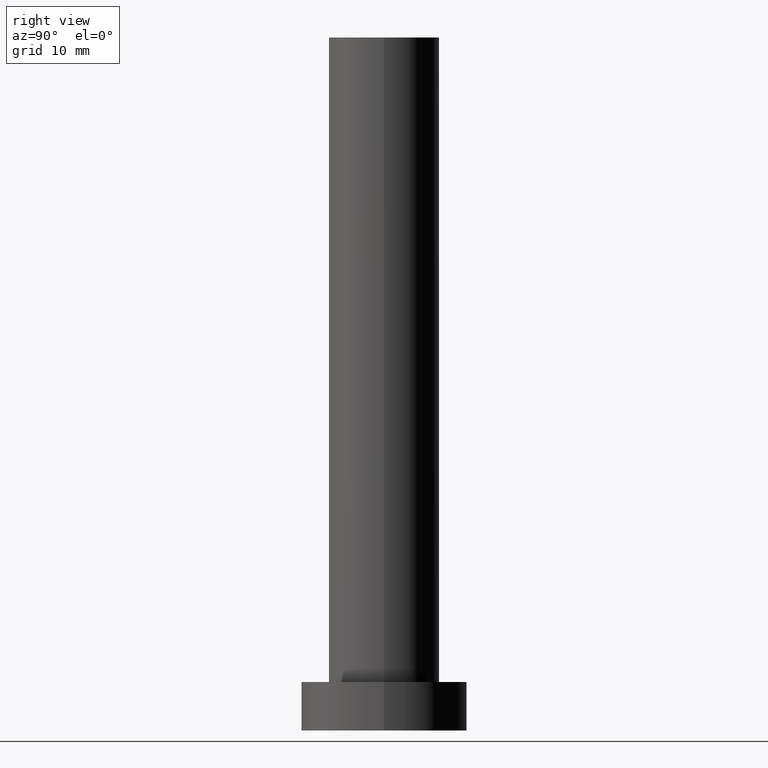
[diagram: clean part render]
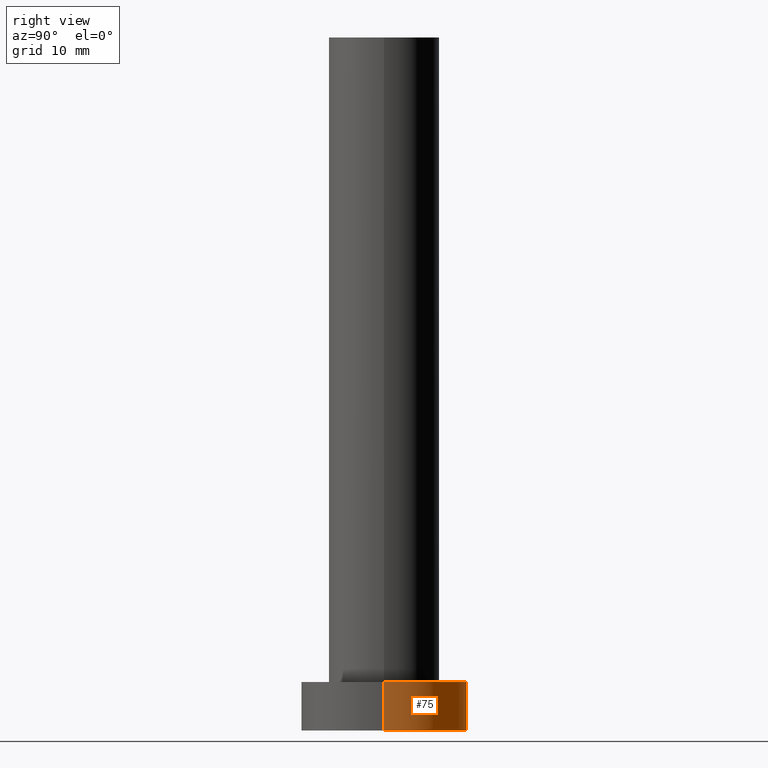
[diagram: same view with one face highlighted and labeled with its STEP entity id]
A machine part, right view. The second image highlights one B-rep face of the part: STEP entity #75.
In plain terms, the highlighted cylindrical surface (partial cylindrical patch) has radius 12 mm, axis along (-0, -0, -1).
Its self-contained STEP definition (entity closure, byte-faithful):
#2 = CARTESIAN_POINT ( 'NONE',  ( 12.00000000000000178, 1.469576158976824144E-15, 7.000000000000000000 ) ) ;
#3 = AXIS2_PLACEMENT_3D ( 'NONE', #124, #224, #221 ) ;
#12 = DIRECTION ( 'NONE',  ( -0.000000000000000000, -0.000000000000000000, -1.000000000000000000 ) ) ;
#15 = CARTESIAN_POINT ( 'NONE',  ( 0.000000000000000000, 0.000000000000000000, 7.000000000000000000 ) ) ;
#20 = DIRECTION ( 'NONE',  ( 1.000000000000000000, 0.000000000000000000, 0.000000000000000000 ) ) ;
#23 = EDGE_CURVE ( 'NONE', #152, #207, #199, .T. ) ;
#31 = EDGE_CURVE ( 'NONE', #152, #155, #96, .T. ) ;
#32 = DIRECTION ( 'NONE',  ( 0.000000000000000000, 0.000000000000000000, 1.000000000000000000 ) ) ;
#34 = CYLINDRICAL_SURFACE ( 'NONE', #215, 12.00000000000000178 ) ;
#48 = VECTOR ( 'NONE', #60, 1000.000000000000000 ) ;
#55 = ORIENTED_EDGE ( 'NONE', *, *, #99, .F. ) ;
#60 = DIRECTION ( 'NONE',  ( -0.000000000000000000, -0.000000000000000000, -1.000000000000000000 ) ) ;
#64 = ORIENTED_EDGE ( 'NONE', *, *, #116, .T. ) ;
#65 = CARTESIAN_POINT ( 'NONE',  ( 12.00000000000000178, 1.469576158976824144E-15, 0.000000000000000000 ) ) ;
#73 = DIRECTION ( 'NONE',  ( -1.000000000000000000, 0.000000000000000000, 0.000000000000000000 ) ) ;
#75 = ADVANCED_FACE ( 'NONE', ( #175 ), #34, .T. ) ;
#80 = CARTESIAN_POINT ( 'NONE',  ( -12.00000000000000178, 0.000000000000000000, 7.000000000000000000 ) ) ;
#96 = LINE ( 'NONE', #179, #110 ) ;
#99 = EDGE_CURVE ( 'NONE', #207, #144, #243, .T. ) ;
#110 = VECTOR ( 'NONE', #12, 1000.000000000000000 ) ;
#116 = EDGE_CURVE ( 'NONE', #155, #144, #191, .T. ) ;
#124 = CARTESIAN_POINT ( 'NONE',  ( 0.000000000000000000, 0.000000000000000000, 0.000000000000000000 ) ) ;
#125 = ORIENTED_EDGE ( 'NONE', *, *, #31, .T. ) ;
#129 = EDGE_LOOP ( 'NONE', ( #248, #125, #64, #55 ) ) ;
#140 = CARTESIAN_POINT ( 'NONE',  ( -12.00000000000000178, 0.000000000000000000, 0.000000000000000000 ) ) ;
#144 = VERTEX_POINT ( 'NONE', #140 ) ;
#152 = VERTEX_POINT ( 'NONE', #2 ) ;
#155 = VERTEX_POINT ( 'NONE', #65 ) ;
#175 = FACE_OUTER_BOUND ( 'NONE', #129, .T. ) ;
#179 = CARTESIAN_POINT ( 'NONE',  ( 12.00000000000000178, 1.469576158976824144E-15, 7.000000000000000000 ) ) ;
#184 = CARTESIAN_POINT ( 'NONE',  ( -12.00000000000000178, 0.000000000000000000, 7.000000000000000000 ) ) ;
#191 = CIRCLE ( 'NONE', #3, 12.00000000000000178 ) ;
#199 = CIRCLE ( 'NONE', #242, 12.00000000000000178 ) ;
#207 = VERTEX_POINT ( 'NONE', #184 ) ;
#213 = CARTESIAN_POINT ( 'NONE',  ( 0.000000000000000000, 0.000000000000000000, 7.000000000000000000 ) ) ;
#215 = AXIS2_PLACEMENT_3D ( 'NONE', #15, #252, #73 ) ;
#221 = DIRECTION ( 'NONE',  ( 1.000000000000000000, 0.000000000000000000, 0.000000000000000000 ) ) ;
#224 = DIRECTION ( 'NONE',  ( 0.000000000000000000, 0.000000000000000000, 1.000000000000000000 ) ) ;
#242 = AXIS2_PLACEMENT_3D ( 'NONE', #213, #32, #20 ) ;
#243 = LINE ( 'NONE', #80, #48 ) ;
#248 = ORIENTED_EDGE ( 'NONE', *, *, #23, .F. ) ;
#252 = DIRECTION ( 'NONE',  ( -0.000000000000000000, -0.000000000000000000, -1.000000000000000000 ) ) ;